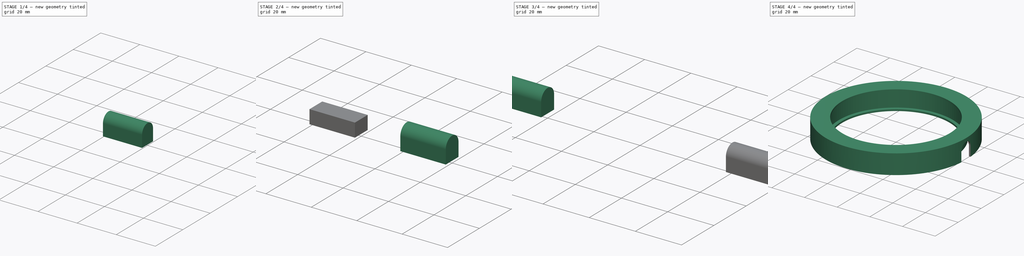
[diagram: build sequence overview — one tinted view per stage of 4, left to right]
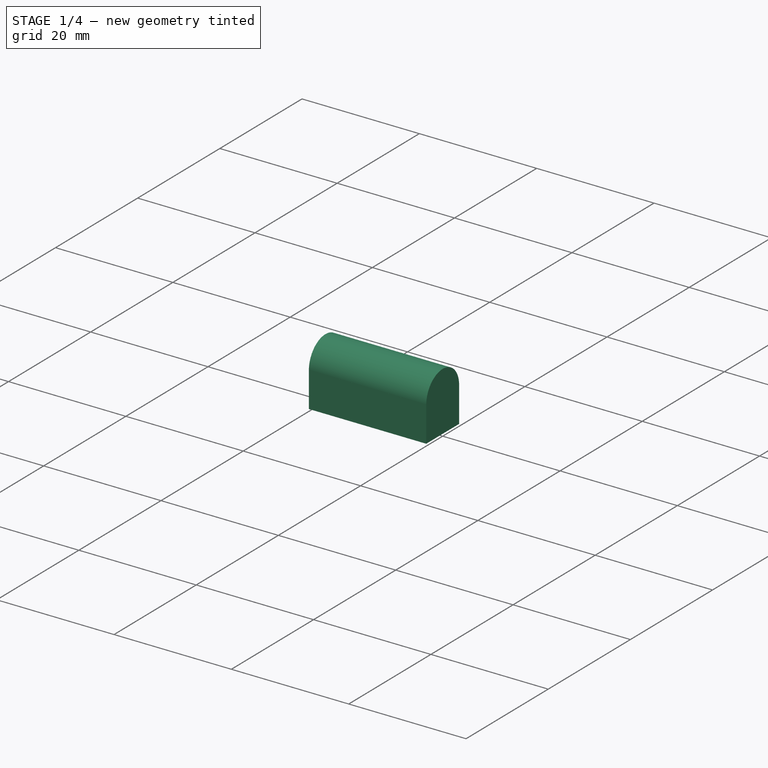
[diagram: stage 1 of 4 — iso view after this stage's code; geometry added in this stage tinted green]
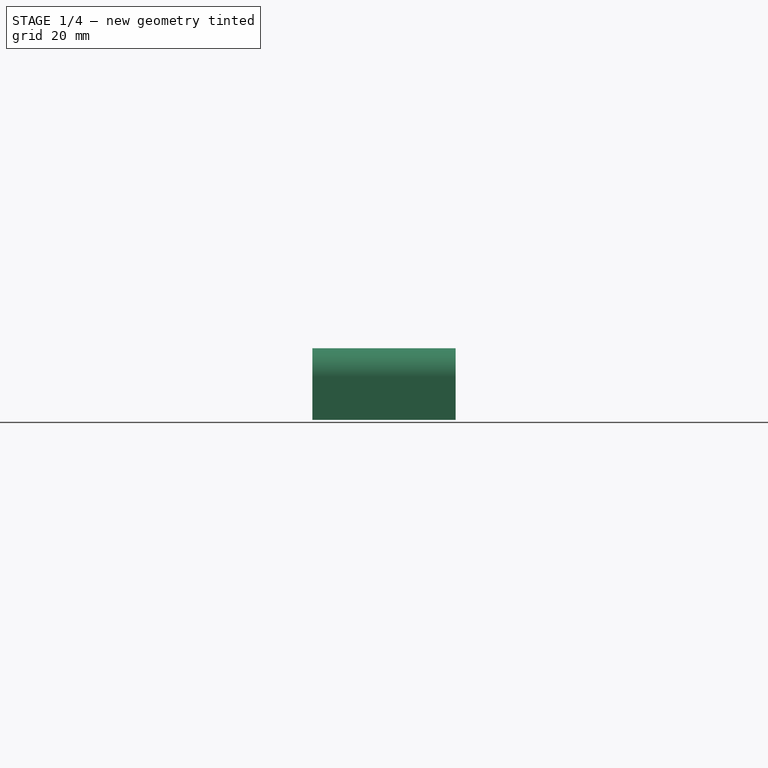
[diagram: stage 1 of 4 — front view after this stage's code; geometry added in this stage tinted green]
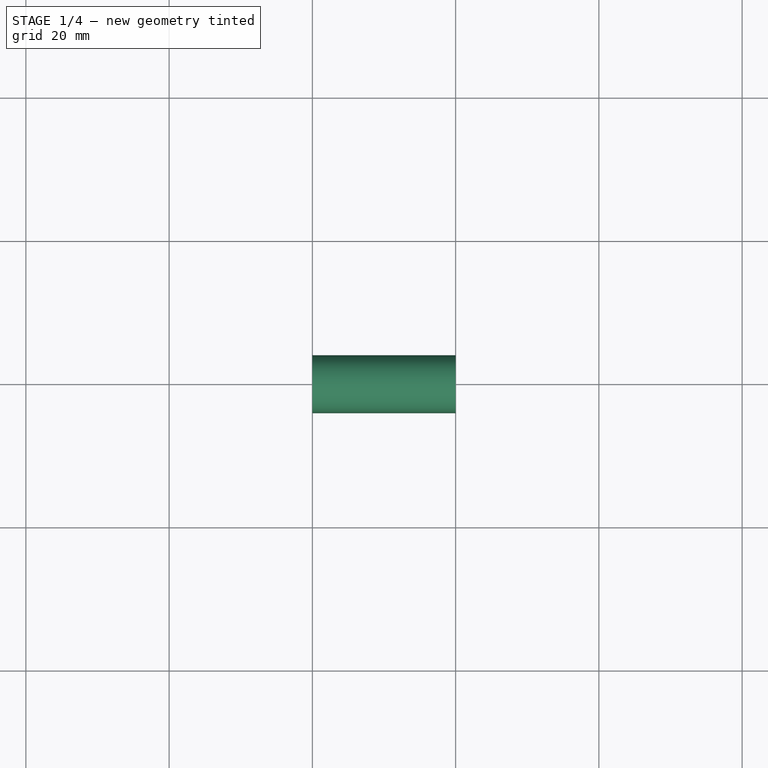
[diagram: stage 1 of 4 — top view after this stage's code; geometry added in this stage tinted green]
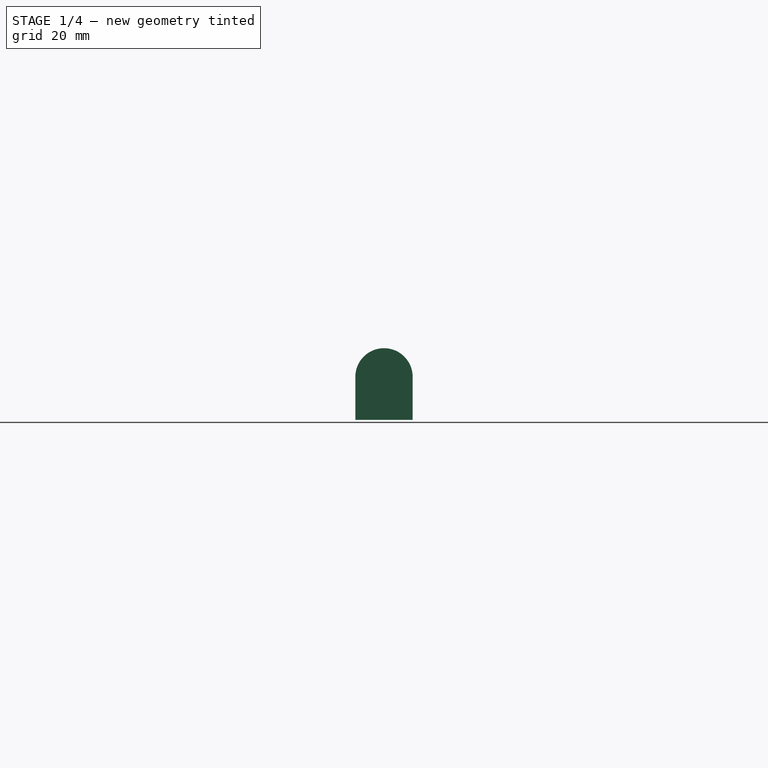
[diagram: stage 1 of 4 — right view after this stage's code; geometry added in this stage tinted green]
FCSTD DOCUMENT  (FreeCAD 0.20R29177 +233 (Git))
Label: anillo_interior_sujeccion
License: Creative Commons Attribution-ShareAlike
LicenseURL: http://creativecommons.org/licenses/by-sa/4.0/
objects: Part::MultiFuse×3, Sketcher::SketchObject×2, Part::Cylinder×2, Part::Box×2, PartDesign::Revolution×1, PartDesign::Body×1, Part::Cut×1
note: 13 computed .brp shape members not serialized (recipe doc carries the construction recipe); baked Part::Feature solids carry a one-line shape summary decoded from their .brp

FEATURE [Part::Box] Box001  label="Cube001"
  AttacherType = Attacher::AttachEngine3D
  Height = 6
  Length = 20
  Placement = pos=(0,-4,0) rot=(0,0,1;0rad)
  Width = 8
FEATURE [Part::Cylinder] Cylinder001
  Angle = 360
  AttacherType = Attacher::AttachEngine3D
  FirstAngle = 0
  Height = 20
  Placement = pos=(0,0,6) rot=(0,1,0;1.5708rad)
  Radius = 4
  SecondAngle = 0
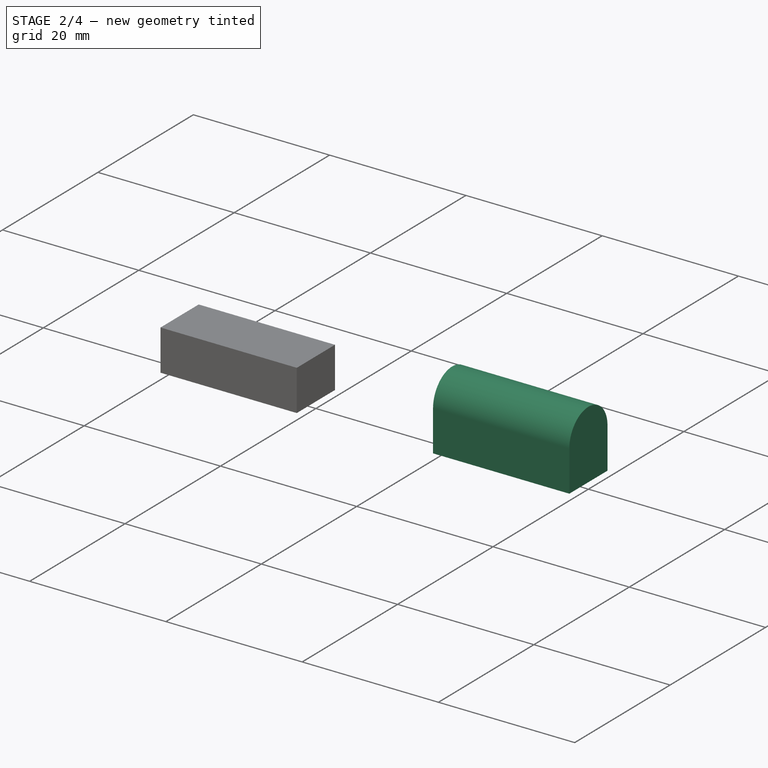
[diagram: stage 2 of 4 — iso view after this stage's code; geometry added in this stage tinted green]
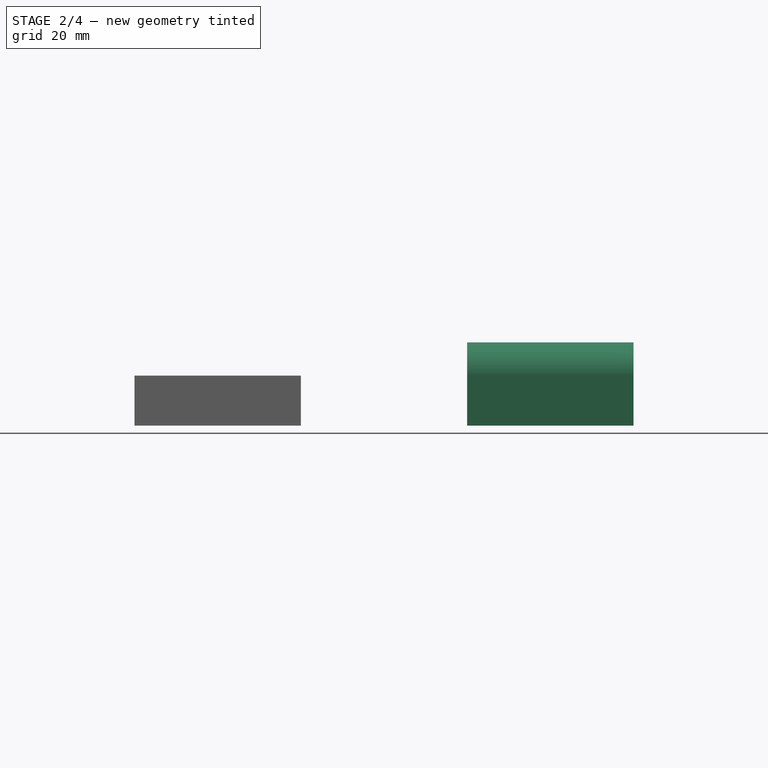
[diagram: stage 2 of 4 — front view after this stage's code; geometry added in this stage tinted green]
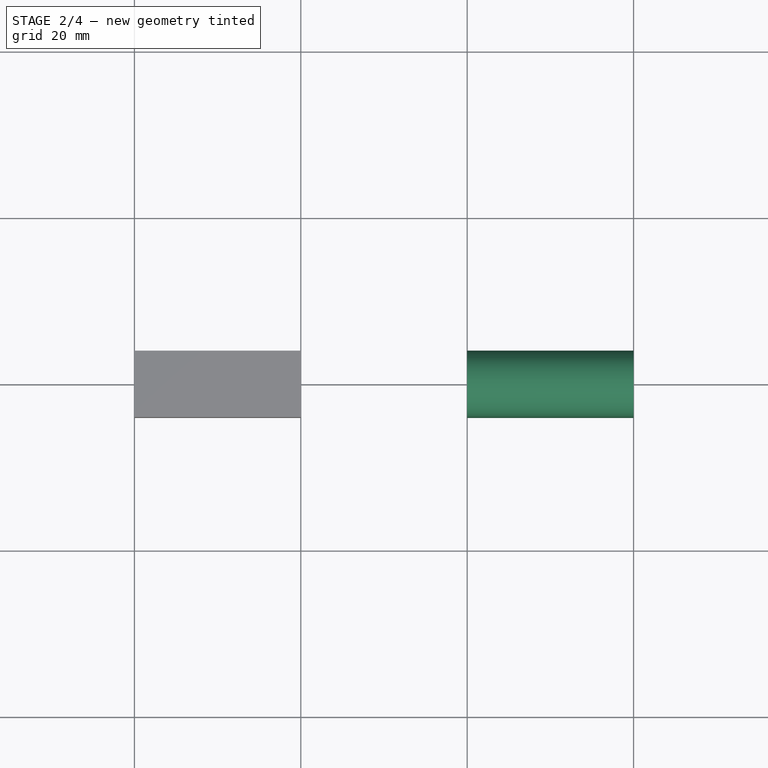
[diagram: stage 2 of 4 — top view after this stage's code; geometry added in this stage tinted green]
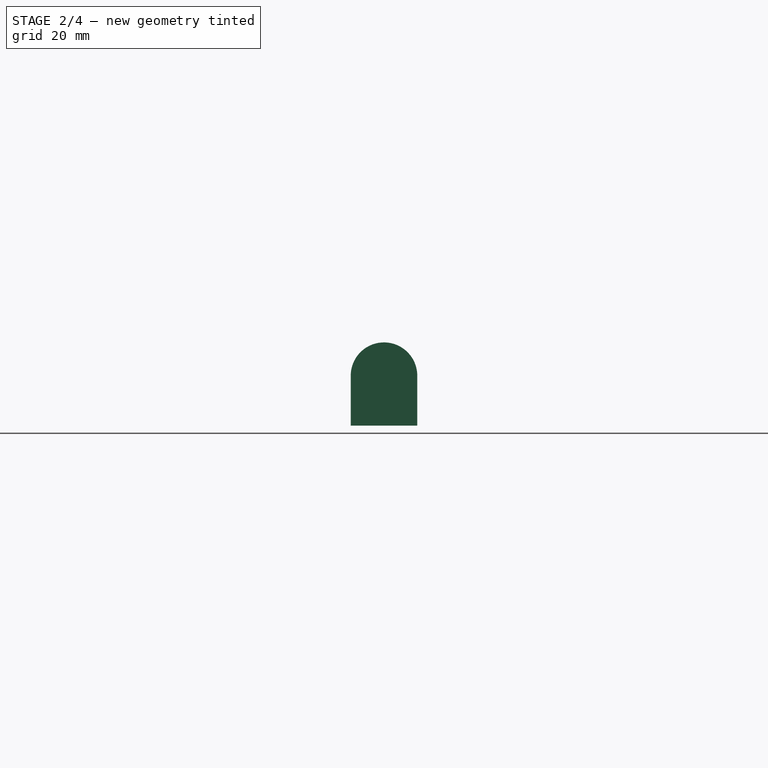
[diagram: stage 2 of 4 — right view after this stage's code; geometry added in this stage tinted green]
FEATURE [Part::Box] Box  label="Cube"
  AttacherType = Attacher::AttachEngine3D
  Height = 6
  Length = 20
  Placement = pos=(0,-4,0) rot=(0,0,1;0rad)
  Width = 8
FEATURE [Part::MultiFuse] Fusion001
  Placement = pos=(40,0,0) rot=(0,0,1;0rad)
  Refine = true
  Shapes = -> [Cylinder001,Box001]
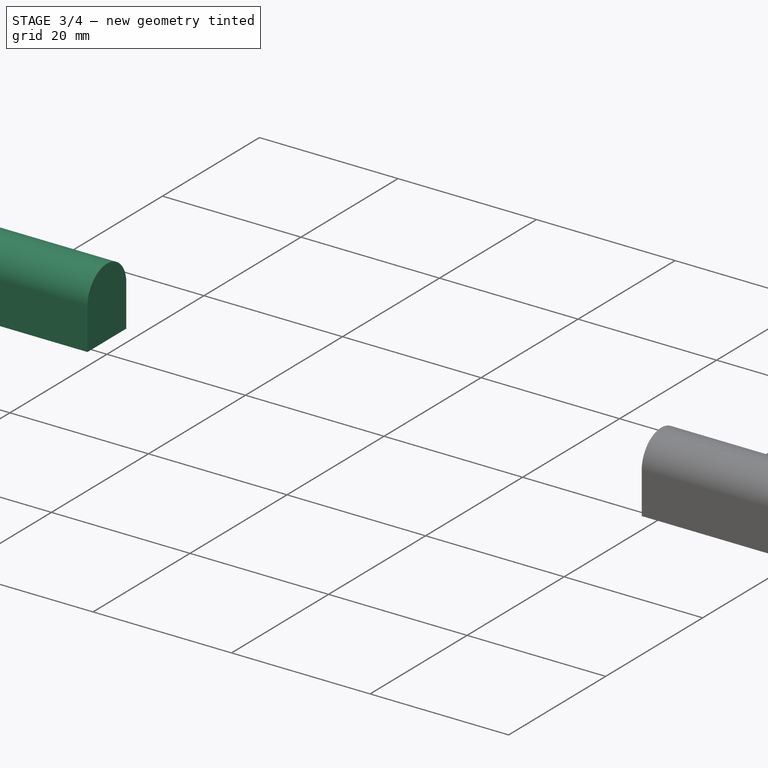
[diagram: stage 3 of 4 — iso view after this stage's code; geometry added in this stage tinted green]
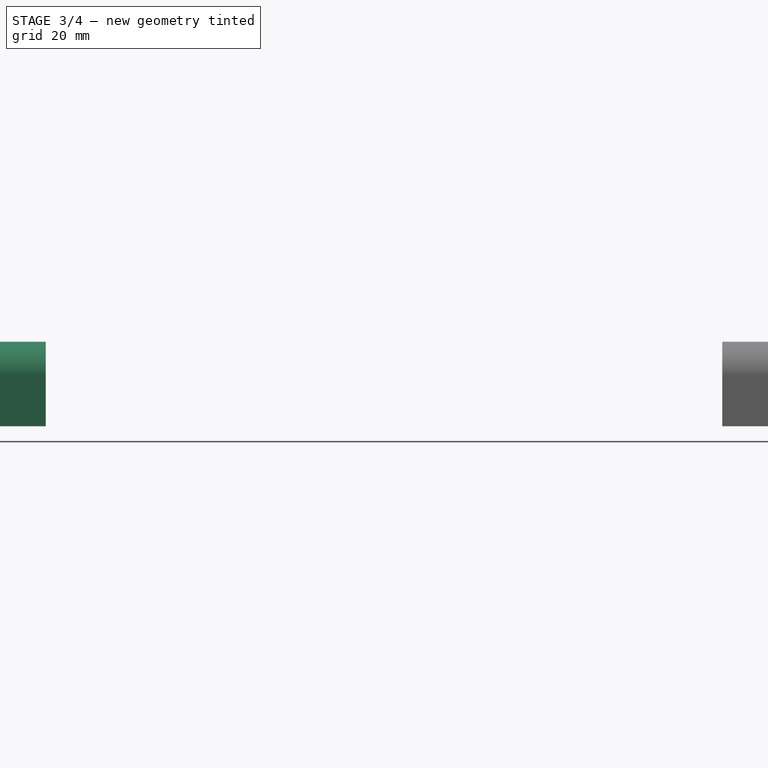
[diagram: stage 3 of 4 — front view after this stage's code; geometry added in this stage tinted green]
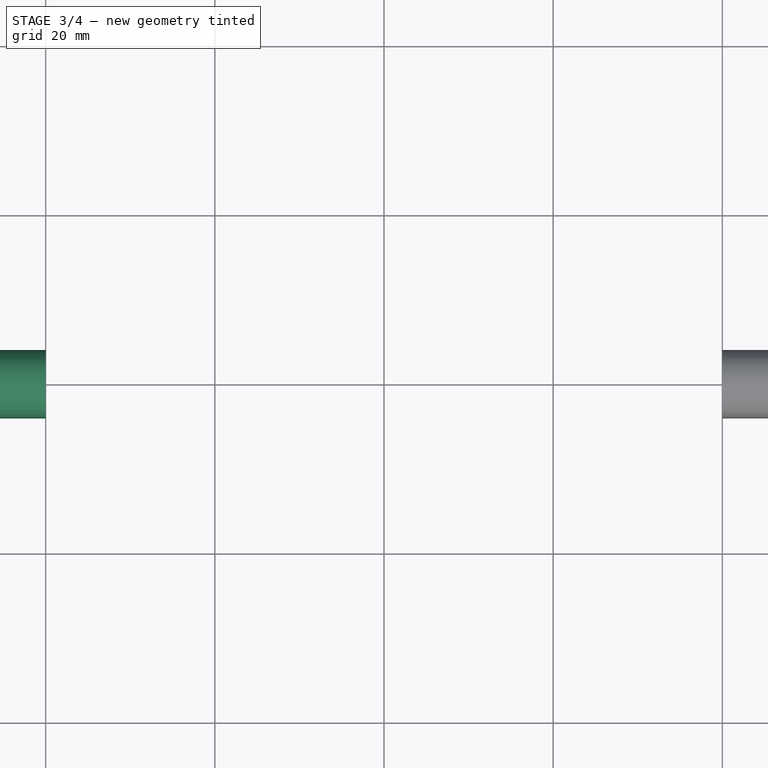
[diagram: stage 3 of 4 — top view after this stage's code; geometry added in this stage tinted green]
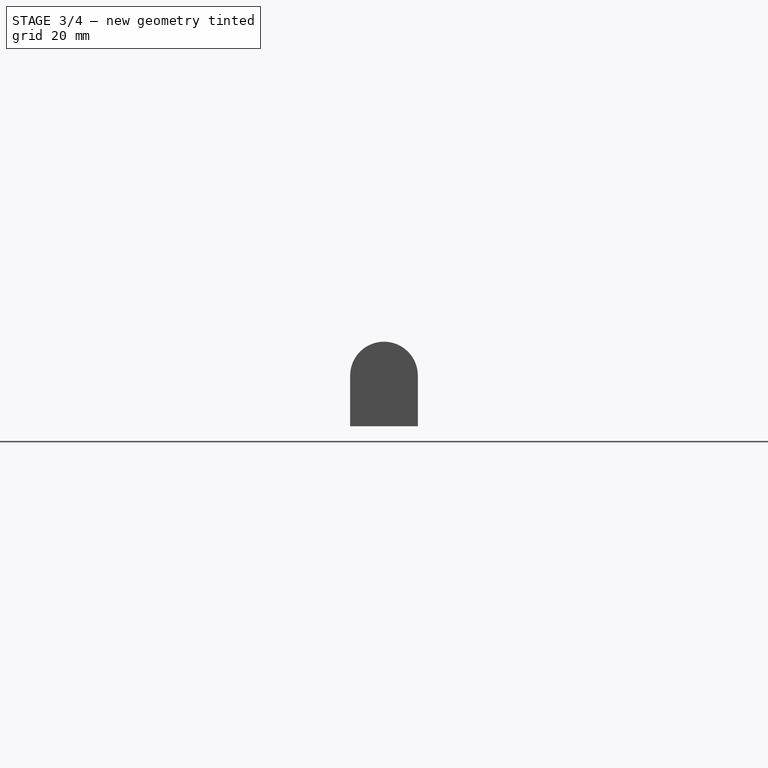
[diagram: stage 3 of 4 — right view after this stage's code; geometry added in this stage tinted green]
FEATURE [PartDesign::Body] Body
  Group = -> [Sketch001,Sketch,Revolution]
  Origin = -> Origin
  Tip = -> Revolution
FEATURE [Part::Cylinder] Cylinder
  Angle = 360
  AttacherType = Attacher::AttachEngine3D
  FirstAngle = 0
  Height = 20
  Placement = pos=(0,0,6) rot=(0,1,0;1.5708rad)
  Radius = 4
  SecondAngle = 0
FEATURE [Part::MultiFuse] Fusion
  Placement = pos=(-60,0,0) rot=(0,0,1;0rad)
  Refine = true
  Shapes = -> [Cylinder,Box]
FEATURE [Part::MultiFuse] Fusion002  label="molde_soporte"
  Refine = true
  Shapes = -> [Fusion001,Fusion]
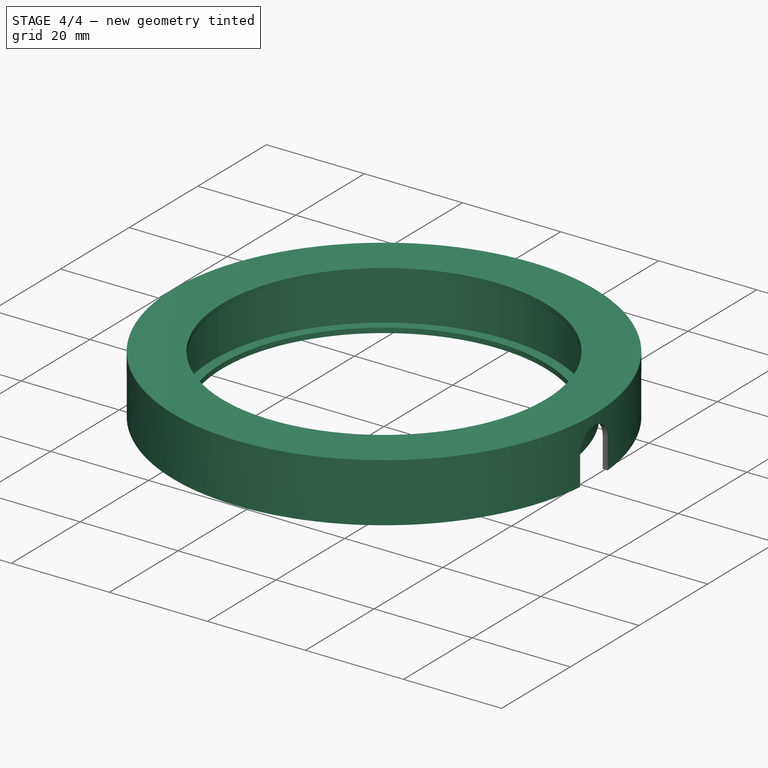
[diagram: stage 4 of 4 — iso view after this stage's code; geometry added in this stage tinted green]
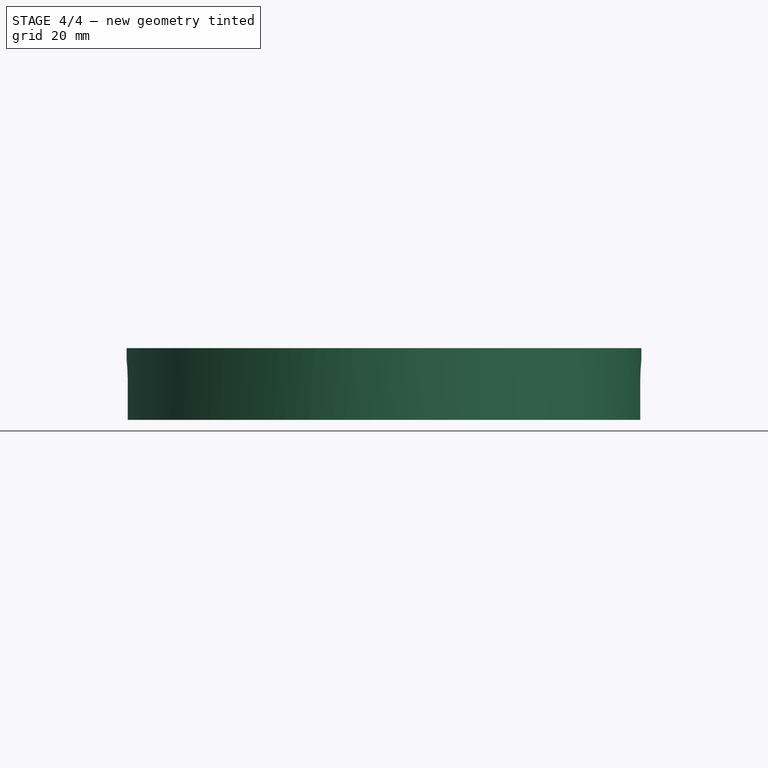
[diagram: stage 4 of 4 — front view after this stage's code; geometry added in this stage tinted green]
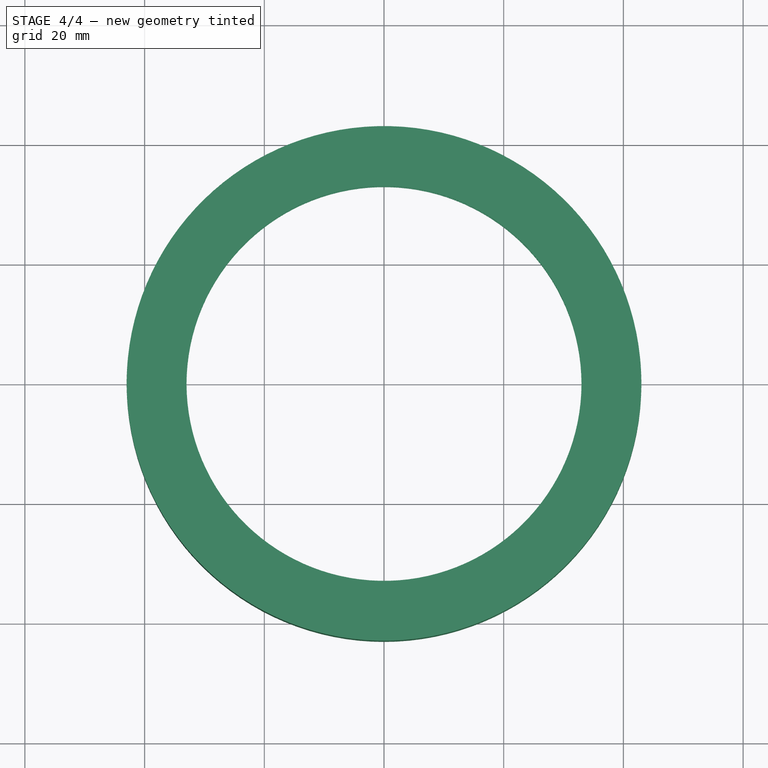
[diagram: stage 4 of 4 — top view after this stage's code; geometry added in this stage tinted green]
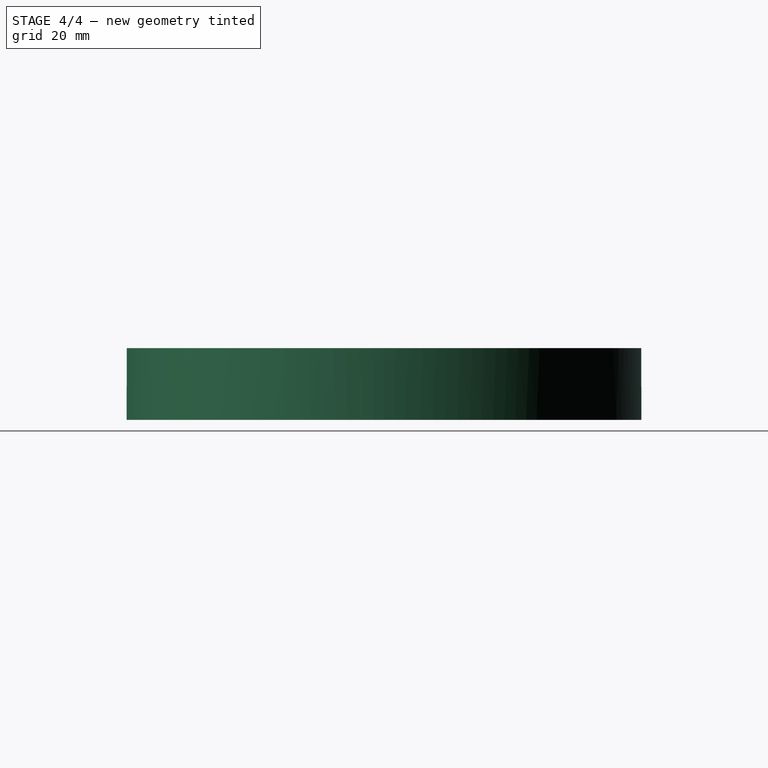
[diagram: stage 4 of 4 — right view after this stage's code; geometry added in this stage tinted green]
FEATURE [Sketcher::SketchObject] Sketch001
  FullyConstrained = true
  MapMode = 5
  Placement = pos=(0,0,0) rot=(1,0,0;1.5708rad)
  Support = -> [XZ_Plane]
  sketch-geometry (12):
    g0: LineSegment StartX=43 StartY=0 StartZ=0 EndX=43 EndY=12 EndZ=0
    g1: LineSegment StartX=43 StartY=12 StartZ=0 EndX=33 EndY=12 EndZ=0
    g2: LineSegment StartX=33 StartY=12 StartZ=0 EndX=33 EndY=11 EndZ=0
    g3: LineSegment StartX=33 StartY=11 StartZ=0 EndX=35 EndY=11 EndZ=0
    g4: LineSegment StartX=35 StartY=11 StartZ=0 EndX=35 EndY=1 EndZ=0
    g5: LineSegment StartX=35 StartY=1 StartZ=0 EndX=33 EndY=1 EndZ=0
    g6: LineSegment StartX=33 StartY=1 StartZ=0 EndX=33 EndY=0 EndZ=0
    g7: LineSegment StartX=33 StartY=0 StartZ=0 EndX=36 EndY=0 EndZ=0
    g8: LineSegment StartX=36 StartY=0 StartZ=0 EndX=36 EndY=10 EndZ=0
    g9: LineSegment StartX=36 StartY=10 StartZ=0 EndX=42 EndY=10 EndZ=0
    g10: LineSegment StartX=42 StartY=0 StartZ=0 EndX=43 EndY=0 EndZ=0
    g11: LineSegment StartX=42 StartY=10 StartZ=0 EndX=42 EndY=0 EndZ=0
  constraints (36):
    c: Vertical(g0)
    c: Coincident(g0,g1)
    c: Horizontal(g1)
    c: Coincident(g1,g2)
    c: Vertical(g2)
    c: Coincident(g2,g3)
    c: Horizontal(g3)
    c: Coincident(g3,g4)
    c: Vertical(g4)
    c: Coincident(g4,g5)
    c: Coincident(g5,g6)
    c: Vertical(g6)
    c: Coincident(g6,g7)
    c: Horizontal(g7)
    c: Coincident(g7,g8)
    c: Vertical(g8)
    c: Coincident(g8,g9)
    c: Horizontal(g9)
    c: Horizontal(g10)
    c: Coincident(g0,g10)
    c: Coincident(g11,g9)
    c: Coincident(g11,g10)
    c: Vertical(g11)
    c: DistanceX(g9,g9) = 6
    c: DistanceX(g3,g3) = 2
    c: DistanceY(g0,g0) = 12
    c: DistanceY(g11,g11) = 10
    c: DistanceY(g8,g8) = 10
    c: DistanceY(g6,g6) = 1
    c: DistanceY(g2,g2) = 1
    c: DistanceX(g5,g5) = 2
    c: DistanceX(g7,g7) = 3
    c: DistanceX(g-1,g7) = 36
    c: DistanceX(g10,g10) = 1
    c: PointOnObject(g7,g-1)
    c: Horizontal(g5)
FEATURE [Sketcher::SketchObject] Sketch
  FullyConstrained = true
  MapMode = 5
  Placement = pos=(0,0,0) rot=(0.57735,0.57735,0.57735;2.0944rad)
  Support = -> [YZ_Plane]
  sketch-geometry (3):
    g0: LineSegment StartX=-4 StartY=0 StartZ=0 EndX=-4 EndY=6 EndZ=0
    g1: LineSegment StartX=4 StartY=0 StartZ=0 EndX=4 EndY=6 EndZ=0
    g2: ArcOfCircle CenterX=-2e-16 CenterY=6.00002 CenterZ=0 NormalX=0 NormalY=0 NormalZ=1 AngleXU=0 Radius=4 StartAngle=6.28318 EndAngle=9.42478
  constraints (9):
    c: Vertical(g0)
    c: Symmetric(g0,g1,g-2)
    c: Coincident(g2,g0)
    c: Coincident(g2,g1)
    c: DistanceX(g0,g1) = 8
    c: Symmetric(g0,g1,g-2)
    c: Radius(g2) = 4
    c: DistanceY(g1,g1) = 6
    c: PointOnObject(g1,g-1)
FEATURE [PartDesign::Revolution] Revolution
  Angle = 360
  Axis = (0,-2e-16,1)
  Base = (0,0,0)
  Placement = pos=(0,0,0) rot=(1,0,0;1.5708rad)
  Profile = -> Sketch001
  ReferenceAxis = -> Sketch001 [V_Axis]
  Refine = true
  Reversed = true
FEATURE [Part::Cut] Cut
  Base = -> Revolution
  Refine = true
  Tool = -> Fusion002
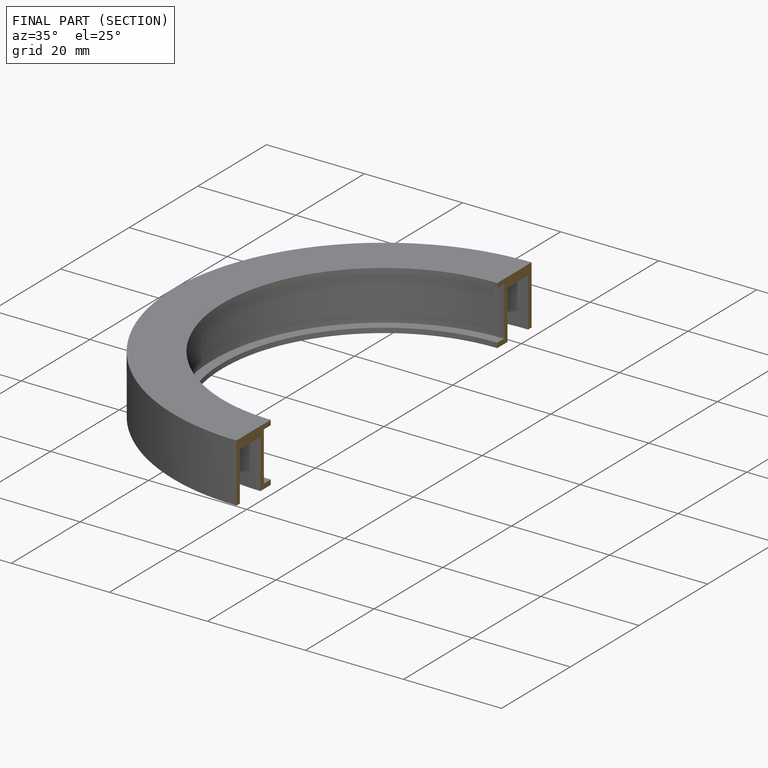
[diagram: finished part — half-section view (interior)]
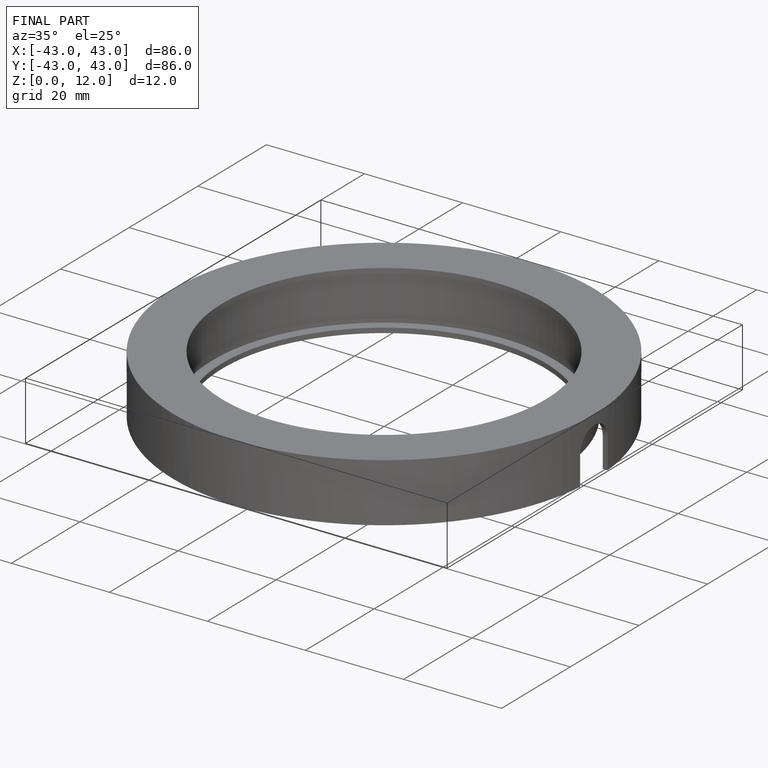
[diagram: finished part — iso view with bounding-box wireframe]
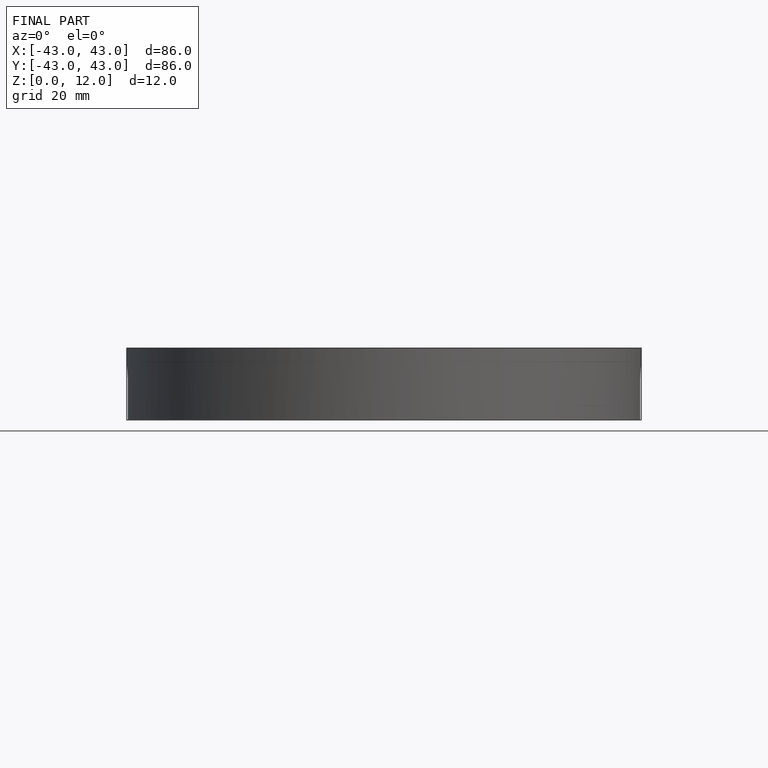
[diagram: finished part — front view with bounding-box wireframe]
